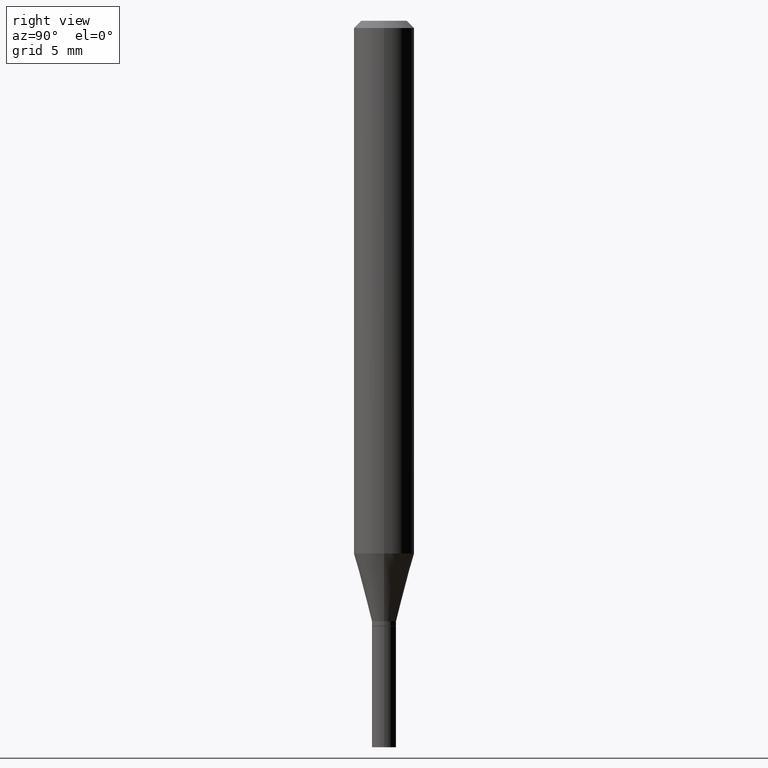
[diagram: clean part render]
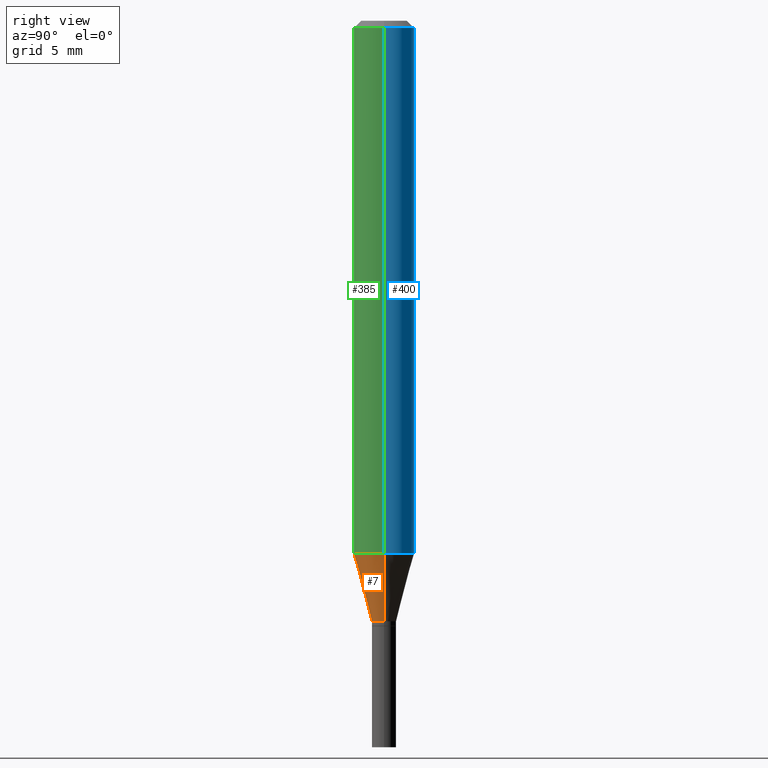
[diagram: same view with three faces highlighted in distinct colors, each labeled with its STEP entity id]
A machine part, right view with three faces highlighted in distinct colors.
Their STEP definitions:

[orange] entity #7 — the highlighted conical surface has half-angle 15 deg.
#7 = ADVANCED_FACE ( 'NONE', ( #344 ), #154, .T. ) ;
#22 = VERTEX_POINT ( 'NONE', #450 ) ;
#46 = CARTESIAN_POINT ( 'NONE',  ( 0.02499999999999992506, -4.504010927107657490E-15, -1.240000000000000213 ) ) ;
#49 = ORIENTED_EDGE ( 'NONE', *, *, #415, .F. ) ;
#56 = AXIS2_PLACEMENT_3D ( 'NONE', #356, #278, #308 ) ;
#70 = EDGE_CURVE ( 'NONE', #177, #193, #115, .T. ) ;
#75 = EDGE_CURVE ( 'NONE', #193, #342, #155, .T. ) ;
#76 = ORIENTED_EDGE ( 'NONE', *, *, #82, .F. ) ;
#82 = EDGE_CURVE ( 'NONE', #22, #342, #403, .T. ) ;
#97 = ORIENTED_EDGE ( 'NONE', *, *, #70, .T. ) ;
#101 = EDGE_LOOP ( 'NONE', ( #49, #97, #337, #76 ) ) ;
#107 = DIRECTION ( 'NONE',  ( 1.000000000000000000, -6.982962677686276177E-15, 0.000000000000000000 ) ) ;
#115 = CIRCLE ( 'NONE', #137, 0.02499999999999992506 ) ;
#137 = AXIS2_PLACEMENT_3D ( 'NONE', #175, #289, #107 ) ;
#150 = CARTESIAN_POINT ( 'NONE',  ( -0.02499999999999992506, -4.151801176225476407E-15, -1.240000000000000213 ) ) ;
#154 = CONICAL_SURFACE ( 'NONE', #56, 0.02499999999999992506, 0.2617993877991497964 ) ;
#155 = LINE ( 'NONE', #46, #221 ) ;
#160 = VECTOR ( 'NONE', #260, 39.37007874015748143 ) ;
#175 = CARTESIAN_POINT ( 'NONE',  ( 3.032381319669569761E-29, -4.329436860165500822E-15, -1.240000000000000213 ) ) ;
#177 = VERTEX_POINT ( 'NONE', #268 ) ;
#181 = LINE ( 'NONE', #150, #160 ) ;
#193 = VERTEX_POINT ( 'NONE', #457 ) ;
#200 = AXIS2_PLACEMENT_3D ( 'NONE', #405, #408, #295 ) ;
#221 = VECTOR ( 'NONE', #369, 39.37007874015748143 ) ;
#260 = DIRECTION ( 'NONE',  ( -0.2588190451025211281, 5.211531920934548675E-15, 0.9659258262890682012 ) ) ;
#268 = CARTESIAN_POINT ( 'NONE',  ( -0.02499999999999992506, -3.774254680453434182E-15, -1.240000000000000213 ) ) ;
#278 = DIRECTION ( 'NONE',  ( -2.445468806185136597E-29, 3.491481338843145583E-15, 1.000000000000000000 ) ) ;
#289 = DIRECTION ( 'NONE',  ( -2.445468806185136597E-29, 3.491481338843145583E-15, 1.000000000000000000 ) ) ;
#292 = CARTESIAN_POINT ( 'NONE',  ( 0.06250000000000000000, -4.277232561886846243E-15, -1.100048094716167268 ) ) ;
#295 = DIRECTION ( 'NONE',  ( 1.000000000000000000, -6.982962677686270655E-15, 0.000000000000000000 ) ) ;
#308 = DIRECTION ( 'NONE',  ( 1.000000000000000000, -6.982962677686276177E-15, 0.000000000000000000 ) ) ;
#337 = ORIENTED_EDGE ( 'NONE', *, *, #75, .T. ) ;
#342 = VERTEX_POINT ( 'NONE', #292 ) ;
#344 = FACE_OUTER_BOUND ( 'NONE', #101, .T. ) ;
#356 = CARTESIAN_POINT ( 'NONE',  ( 3.032381319669569761E-29, -4.329436860165500822E-15, -1.240000000000000213 ) ) ;
#369 = DIRECTION ( 'NONE',  ( 0.2588190451025211281, 1.565188264969623940E-15, 0.9659258262890682012 ) ) ;
#403 = CIRCLE ( 'NONE', #200, 0.06250000000000000000 ) ;
#405 = CARTESIAN_POINT ( 'NONE',  ( 2.690133300931779832E-29, -3.840797394531454574E-15, -1.100048094716167268 ) ) ;
#408 = DIRECTION ( 'NONE',  ( -2.445468806185136597E-29, 3.491481338843145583E-15, 1.000000000000000000 ) ) ;
#415 = EDGE_CURVE ( 'NONE', #177, #22, #181, .T. ) ;
#450 = CARTESIAN_POINT ( 'NONE',  ( -0.06250000000000000000, -3.396708184681391958E-15, -1.100048094716167268 ) ) ;
#457 = CARTESIAN_POINT ( 'NONE',  ( 0.02499999999999992506, -4.504010927107657490E-15, -1.240000000000000213 ) ) ;

[blue] entity #400 — the highlighted cylindrical surface (edge-blend (fillet) strip) has radius 1.5875 mm, axis along (-0, 0, 1).
#15 = DIRECTION ( 'NONE',  ( 1.000000000000000000, -6.982962677686266711E-15, 0.000000000000000000 ) ) ;
#20 = ORIENTED_EDGE ( 'NONE', *, *, #231, .F. ) ;
#22 = VERTEX_POINT ( 'NONE', #450 ) ;
#24 = CARTESIAN_POINT ( 'NONE',  ( 3.668203209277705088E-31, -5.237222008264718399E-17, -0.01499999999999999944 ) ) ;
#32 = DIRECTION ( 'NONE',  ( -2.445468806185136597E-29, 3.491481338843145583E-15, 1.000000000000000000 ) ) ;
#38 = DIRECTION ( 'NONE',  ( 1.000000000000000000, -6.982962677686270655E-15, 0.000000000000000000 ) ) ;
#51 = EDGE_LOOP ( 'NONE', ( #314, #164, #20, #99 ) ) ;
#53 = FACE_OUTER_BOUND ( 'NONE', #51, .T. ) ;
#58 = AXIS2_PLACEMENT_3D ( 'NONE', #24, #122, #15 ) ;
#60 = VERTEX_POINT ( 'NONE', #87 ) ;
#63 = CARTESIAN_POINT ( 'NONE',  ( 0.06250000000000000000, -4.364351673553916694E-16, 3.047610484872459871E-30 ) ) ;
#68 = CIRCLE ( 'NONE', #58, 0.06250000000000000000 ) ;
#87 = CARTESIAN_POINT ( 'NONE',  ( -0.06250000000000000000, -1.502495597456988408E-15, -0.01499999999999999944 ) ) ;
#99 = ORIENTED_EDGE ( 'NONE', *, *, #249, .F. ) ;
#103 = CARTESIAN_POINT ( 'NONE',  ( 2.690133300931779832E-29, -3.840797394531454574E-15, -1.100048094716167268 ) ) ;
#122 = DIRECTION ( 'NONE',  ( -2.445468806185136597E-29, 3.491481338843145583E-15, 1.000000000000000000 ) ) ;
#129 = LINE ( 'NONE', #63, #326 ) ;
#159 = CARTESIAN_POINT ( 'NONE',  ( 0.06250000000000000000, -4.888073874380388472E-16, -0.01499999999999999944 ) ) ;
#164 = ORIENTED_EDGE ( 'NONE', *, *, #214, .T. ) ;
#178 = CIRCLE ( 'NONE', #234, 0.06250000000000000000 ) ;
#211 = CYLINDRICAL_SURFACE ( 'NONE', #277, 0.06250000000000000000 ) ;
#214 = EDGE_CURVE ( 'NONE', #22, #60, #388, .T. ) ;
#231 = EDGE_CURVE ( 'NONE', #372, #60, #68, .T. ) ;
#234 = AXIS2_PLACEMENT_3D ( 'NONE', #103, #32, #38 ) ;
#249 = EDGE_CURVE ( 'NONE', #342, #372, #129, .T. ) ;
#277 = AXIS2_PLACEMENT_3D ( 'NONE', #306, #351, #311 ) ;
#280 = DIRECTION ( 'NONE',  ( -2.445468806185136877E-29, 3.491481338843145188E-15, 1.000000000000000000 ) ) ;
#292 = CARTESIAN_POINT ( 'NONE',  ( 0.06250000000000000000, -4.277232561886846243E-15, -1.100048094716167268 ) ) ;
#306 = CARTESIAN_POINT ( 'NONE',  ( 0.000000000000000000, 0.000000000000000000, 0.000000000000000000 ) ) ;
#311 = DIRECTION ( 'NONE',  ( 1.000000000000000000, -6.982962677686266711E-15, 4.876176775795935793E-29 ) ) ;
#314 = ORIENTED_EDGE ( 'NONE', *, *, #330, .T. ) ;
#326 = VECTOR ( 'NONE', #280, 39.37007874015748143 ) ;
#330 = EDGE_CURVE ( 'NONE', #342, #22, #178, .T. ) ;
#342 = VERTEX_POINT ( 'NONE', #292 ) ;
#351 = DIRECTION ( 'NONE',  ( -2.445468806185136597E-29, 3.491481338843145583E-15, 1.000000000000000000 ) ) ;
#358 = VECTOR ( 'NONE', #448, 39.37007874015748143 ) ;
#372 = VERTEX_POINT ( 'NONE', #159 ) ;
#388 = LINE ( 'NONE', #445, #358 ) ;
#400 = ADVANCED_FACE ( 'NONE', ( #53 ), #211, .T. ) ;
#445 = CARTESIAN_POINT ( 'NONE',  ( -0.06250000000000000000, 4.440892098500626162E-16, -3.074334431409316114E-30 ) ) ;
#448 = DIRECTION ( 'NONE',  ( -2.445468806185136877E-29, 3.491481338843145188E-15, 1.000000000000000000 ) ) ;
#450 = CARTESIAN_POINT ( 'NONE',  ( -0.06250000000000000000, -3.396708184681391958E-15, -1.100048094716167268 ) ) ;

[green] entity #385 — the highlighted cylindrical surface (edge-blend (fillet) strip) has radius 1.5875 mm, axis along (-0, 0, 1).
#2 = ORIENTED_EDGE ( 'NONE', *, *, #249, .T. ) ;
#16 = DIRECTION ( 'NONE',  ( -2.445468806185136597E-29, 3.491481338843145583E-15, 1.000000000000000000 ) ) ;
#21 = FACE_OUTER_BOUND ( 'NONE', #187, .T. ) ;
#22 = VERTEX_POINT ( 'NONE', #450 ) ;
#60 = VERTEX_POINT ( 'NONE', #87 ) ;
#63 = CARTESIAN_POINT ( 'NONE',  ( 0.06250000000000000000, -4.364351673553916694E-16, 3.047610484872459871E-30 ) ) ;
#82 = EDGE_CURVE ( 'NONE', #22, #342, #403, .T. ) ;
#87 = CARTESIAN_POINT ( 'NONE',  ( -0.06250000000000000000, -1.502495597456988408E-15, -0.01499999999999999944 ) ) ;
#129 = LINE ( 'NONE', #63, #326 ) ;
#159 = CARTESIAN_POINT ( 'NONE',  ( 0.06250000000000000000, -4.888073874380388472E-16, -0.01499999999999999944 ) ) ;
#162 = CARTESIAN_POINT ( 'NONE',  ( 3.668203209277705088E-31, -5.237222008264718399E-17, -0.01499999999999999944 ) ) ;
#187 = EDGE_LOOP ( 'NONE', ( #463, #208, #2, #418 ) ) ;
#200 = AXIS2_PLACEMENT_3D ( 'NONE', #405, #408, #295 ) ;
#208 = ORIENTED_EDGE ( 'NONE', *, *, #82, .T. ) ;
#214 = EDGE_CURVE ( 'NONE', #22, #60, #388, .T. ) ;
#226 = AXIS2_PLACEMENT_3D ( 'NONE', #276, #16, #423 ) ;
#249 = EDGE_CURVE ( 'NONE', #342, #372, #129, .T. ) ;
#266 = EDGE_CURVE ( 'NONE', #60, #372, #333, .T. ) ;
#273 = DIRECTION ( 'NONE',  ( 1.000000000000000000, -6.982962677686266711E-15, 0.000000000000000000 ) ) ;
#276 = CARTESIAN_POINT ( 'NONE',  ( 0.000000000000000000, 0.000000000000000000, 0.000000000000000000 ) ) ;
#280 = DIRECTION ( 'NONE',  ( -2.445468806185136877E-29, 3.491481338843145188E-15, 1.000000000000000000 ) ) ;
#292 = CARTESIAN_POINT ( 'NONE',  ( 0.06250000000000000000, -4.277232561886846243E-15, -1.100048094716167268 ) ) ;
#295 = DIRECTION ( 'NONE',  ( 1.000000000000000000, -6.982962677686270655E-15, 0.000000000000000000 ) ) ;
#307 = DIRECTION ( 'NONE',  ( -2.445468806185136597E-29, 3.491481338843145583E-15, 1.000000000000000000 ) ) ;
#326 = VECTOR ( 'NONE', #280, 39.37007874015748143 ) ;
#333 = CIRCLE ( 'NONE', #383, 0.06250000000000000000 ) ;
#342 = VERTEX_POINT ( 'NONE', #292 ) ;
#358 = VECTOR ( 'NONE', #448, 39.37007874015748143 ) ;
#372 = VERTEX_POINT ( 'NONE', #159 ) ;
#383 = AXIS2_PLACEMENT_3D ( 'NONE', #162, #307, #273 ) ;
#385 = ADVANCED_FACE ( 'NONE', ( #21 ), #389, .T. ) ;
#388 = LINE ( 'NONE', #445, #358 ) ;
#389 = CYLINDRICAL_SURFACE ( 'NONE', #226, 0.06250000000000000000 ) ;
#403 = CIRCLE ( 'NONE', #200, 0.06250000000000000000 ) ;
#405 = CARTESIAN_POINT ( 'NONE',  ( 2.690133300931779832E-29, -3.840797394531454574E-15, -1.100048094716167268 ) ) ;
#408 = DIRECTION ( 'NONE',  ( -2.445468806185136597E-29, 3.491481338843145583E-15, 1.000000000000000000 ) ) ;
#418 = ORIENTED_EDGE ( 'NONE', *, *, #266, .F. ) ;
#423 = DIRECTION ( 'NONE',  ( 1.000000000000000000, -6.982962677686266711E-15, 4.876176775795935793E-29 ) ) ;
#445 = CARTESIAN_POINT ( 'NONE',  ( -0.06250000000000000000, 4.440892098500626162E-16, -3.074334431409316114E-30 ) ) ;
#448 = DIRECTION ( 'NONE',  ( -2.445468806185136877E-29, 3.491481338843145188E-15, 1.000000000000000000 ) ) ;
#450 = CARTESIAN_POINT ( 'NONE',  ( -0.06250000000000000000, -3.396708184681391958E-15, -1.100048094716167268 ) ) ;
#463 = ORIENTED_EDGE ( 'NONE', *, *, #214, .F. ) ;